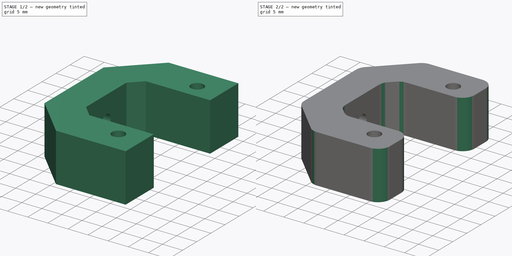
[diagram: build sequence overview — one tinted view per stage of 2, left to right]
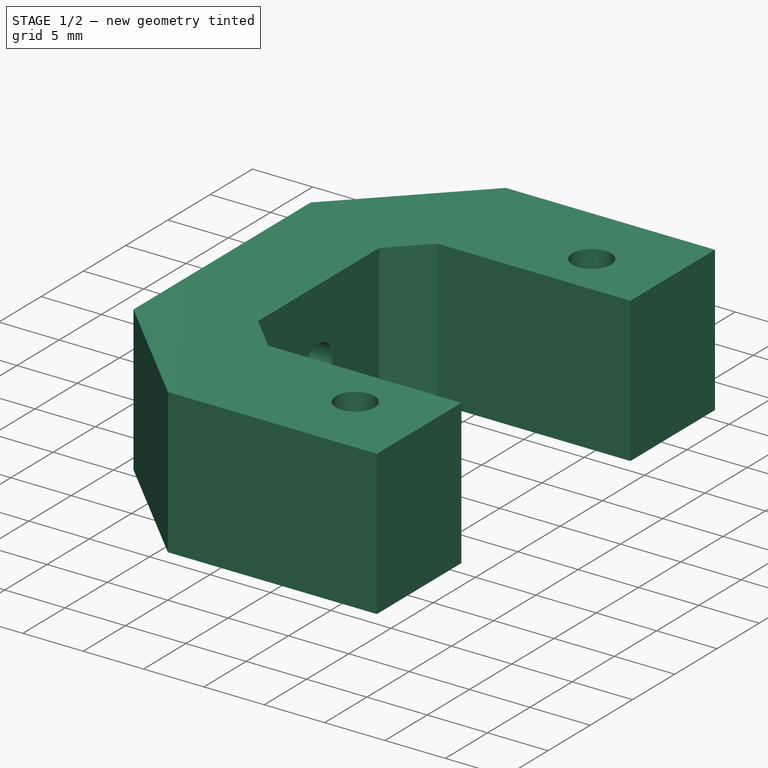
[diagram: stage 1 of 2 — iso view after this stage's code; geometry added in this stage tinted green]
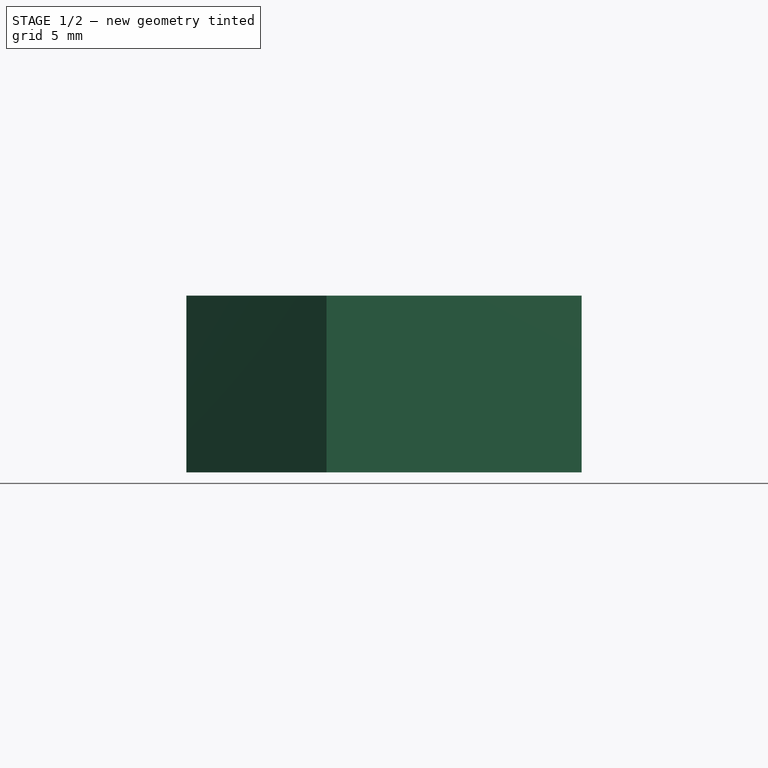
[diagram: stage 1 of 2 — front view after this stage's code; geometry added in this stage tinted green]
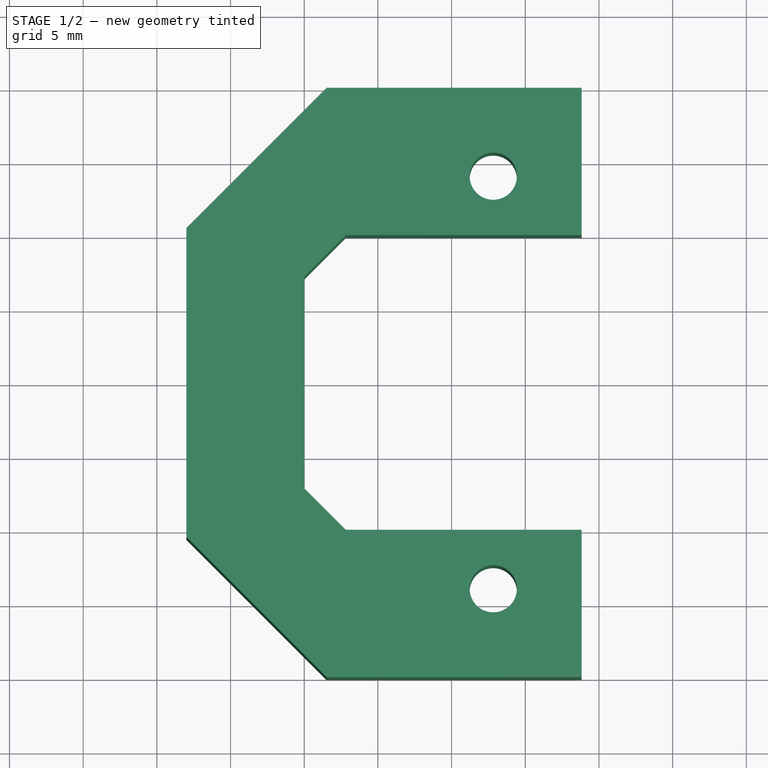
[diagram: stage 1 of 2 — top view after this stage's code; geometry added in this stage tinted green]
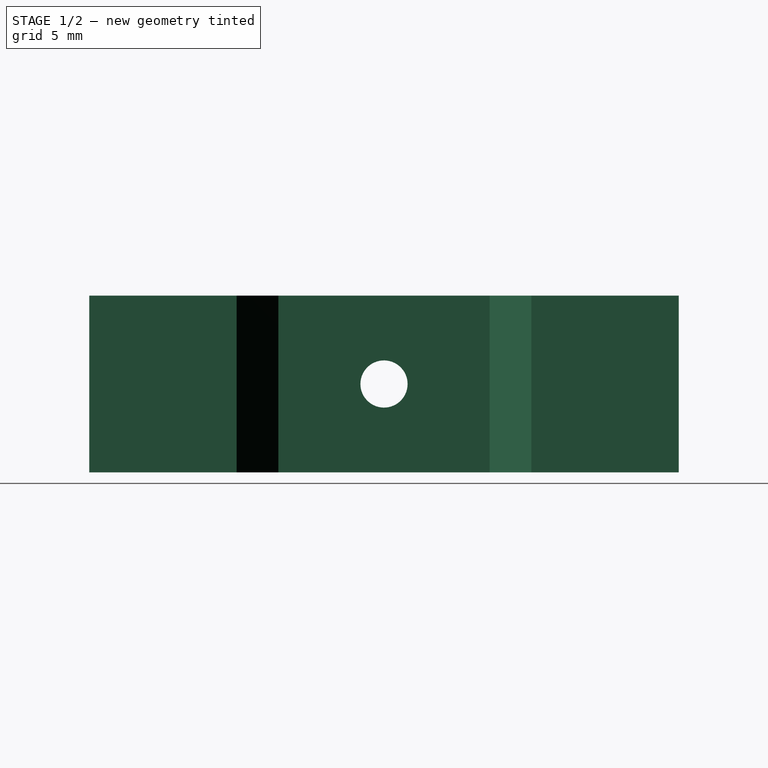
[diagram: stage 1 of 2 — right view after this stage's code; geometry added in this stage tinted green]
FCSTD DOCUMENT  (FreeCAD 0.18R14090 (Git))
Label: XBeltTensionerFrameStandNew
License: All rights reserved
LicenseURL: http://en.wikipedia.org/wiki/All_rights_reserved
objects: Sketcher::SketchObject×2, PartDesign::Pad×1, PartDesign::Pocket×1, PartDesign::Fillet×1, PartDesign::Body×1, App::Part×1
note: 8 computed .brp shape members not serialized (recipe doc carries the construction recipe); baked Part::Feature solids carry a one-line shape summary decoded from their .brp

FEATURE [Sketcher::SketchObject] Sketch  label="FS_BaseSketch"
  MapMode = 5
  Support = -> [XY_Plane001]
  sketch-geometry (20):
    g0: LineSegment StartX=1.51472 StartY=20 StartZ=0 EndX=18.8284 EndY=20 EndZ=0
    g1: LineSegment StartX=18.8284 StartY=20 StartZ=0 EndX=18.8284 EndY=10 EndZ=0
    g2: LineSegment StartX=18.8284 StartY=10 StartZ=0 EndX=6.82843 EndY=10 EndZ=0
    g3: LineSegment StartX=1.51472 StartY=20 StartZ=0 EndX=-8 EndY=10.4853 EndZ=0
    g4: LineSegment StartX=0 StartY=7.17157 StartZ=0 EndX=0 EndY=-7.17157 EndZ=0
    g5: LineSegment StartX=-8 StartY=10.4853 StartZ=0 EndX=-8 EndY=-10.4853 EndZ=0
    g6: LineSegment StartX=1.51472 StartY=-20 StartZ=0 EndX=18.8284 EndY=-20 EndZ=0
    g7: LineSegment StartX=18.8284 StartY=-20 StartZ=0 EndX=18.8284 EndY=-10 EndZ=0
    g8: LineSegment StartX=18.8284 StartY=-10 StartZ=0 EndX=6.82843 EndY=-10 EndZ=0
    g9: LineSegment StartX=1.51472 StartY=-20 StartZ=0 EndX=-8 EndY=-10.4853 EndZ=0
    g10: Circle CenterX=12.8284 CenterY=14 CenterZ=0 NormalX=0 NormalY=0 NormalZ=1 AngleXU=0 Radius=1.6
    g11: Circle CenterX=12.8284 CenterY=-14 CenterZ=0 NormalX=0 NormalY=0 NormalZ=1 AngleXU=0 Radius=1.6
    g12: LineSegment [constr] StartX=12.8284 StartY=14 StartZ=0 EndX=18.8284 EndY=14 EndZ=0
    g13: LineSegment StartX=0 StartY=7.17157 StartZ=0 EndX=2.82843 EndY=10 EndZ=0
    g14: LineSegment StartX=6.82843 StartY=-10 StartZ=0 EndX=2.82843 EndY=-10 EndZ=0
    g15: LineSegment StartX=2.82843 StartY=-10 StartZ=0 EndX=0 EndY=-7.17157 EndZ=0
    g16: LineSegment [constr] StartX=0 StartY=7.17157 StartZ=0 EndX=-5.65685 EndY=12.8284 EndZ=0
    g17: LineSegment [constr] StartX=0 StartY=7.17157 StartZ=0 EndX=-8 EndY=7.17157 EndZ=0
    g18: LineSegment [constr] StartX=12.8284 StartY=-14 StartZ=0 EndX=12.8284 EndY=-10 EndZ=0
    g19: LineSegment StartX=2.82843 StartY=10 StartZ=0 EndX=6.82843 EndY=10 EndZ=0
  constraints (56):
    c: Horizontal(g0)
    c: Coincident(g1,g0)
    c: Vertical(g1)
    c: Coincident(g2,g1)
    c: Horizontal(g2)
    c: Coincident(g3,g0)
    c: Coincident(g5,g3)
    c: Coincident(g7,g6)
    c: Coincident(g8,g7)
    c: Coincident(g9,g6)
    c: Coincident(g5,g9)
    c: Symmetric(g1,g7,g-1)
    c: Vertical(g7)
    c: Horizontal(g8)
    c: Horizontal(g6)
    c: Symmetric(g4,g4,g-1)
    c: Symmetric(g3,g5,g-1)
    c: Distance(g0,g6) = 40
    c: PointOnObject(g4,g-2)
    c: Coincident(g12,g10)
    c: PointOnObject(g12,g1)
    c: Symmetric(g10,g11,g-1)
    c: Horizontal(g12)
    c: Coincident(g13,g4)
    c: Coincident(g14,g8)
    c: Coincident(g15,g14)
    c: Coincident(g15,g4)
    c: Parallel(g13,g3)
    c: Coincident(g16,g4)
    c: PointOnObject(g16,g3)
    c: Perpendicular(g3,g16)
    c: Coincident(g17,g4)
    c: PointOnObject(g17,g5)
    c: Perpendicular(g5,g17)
    c: Equal(g17,g16)
    c: Distance(g11,g10) = 28
    c: Coincident(g18,g11)
    c: PointOnObject(g18,g8)
    c: Vertical(g18)
    c: Distance(g18) = 4
    c: Coincident(g19,g13)
    c: Coincident(g19,g2)
    c: Equal(g19,g14)
    c: Horizontal(g19)
    c: Horizontal(g14)
    c: Equal(g7,g1)
    c: Distance(g19) = 4
    c: Equal(g8,g2)
    c: Equal(g0,g6)
    c: Distance(g12) = 6
    c: Radius(g11) = 1.6
    c: Distance(g2) = 12
    c: Distance(g17) = 8
    c: Equal(g13,g19)
    c: Equal(g11,g10)
    c: Angle(g3,g0) = 2.35619
FEATURE [PartDesign::Pad] Pad  label="FS_BasePad"
  Length = 12
  Length2 = 100
  Midplane = true
  Profile = -> Sketch
  Type = 0
FEATURE [Sketcher::SketchObject] Sketch001  label="FS_ScrewSketch"
  MapMode = 5
  Placement = pos=(0,0,0) rot=(0.57735,0.57735,0.57735;2.0944rad)
  Support = -> [YZ_Plane001]
  sketch-geometry (1):
    g0: Circle CenterX=0 CenterY=0 CenterZ=0 NormalX=0 NormalY=0 NormalZ=1 AngleXU=0 Radius=1.6
  constraints (2):
    c: Coincident(g0,g-1)
    c: Radius(g0) = 1.6
FEATURE [PartDesign::Pocket] Pocket  label="FS_ScrewPocket"
  BaseFeature = -> Pad
  Length = 5
  Length2 = 100
  Profile = -> Sketch001
  Type = 1
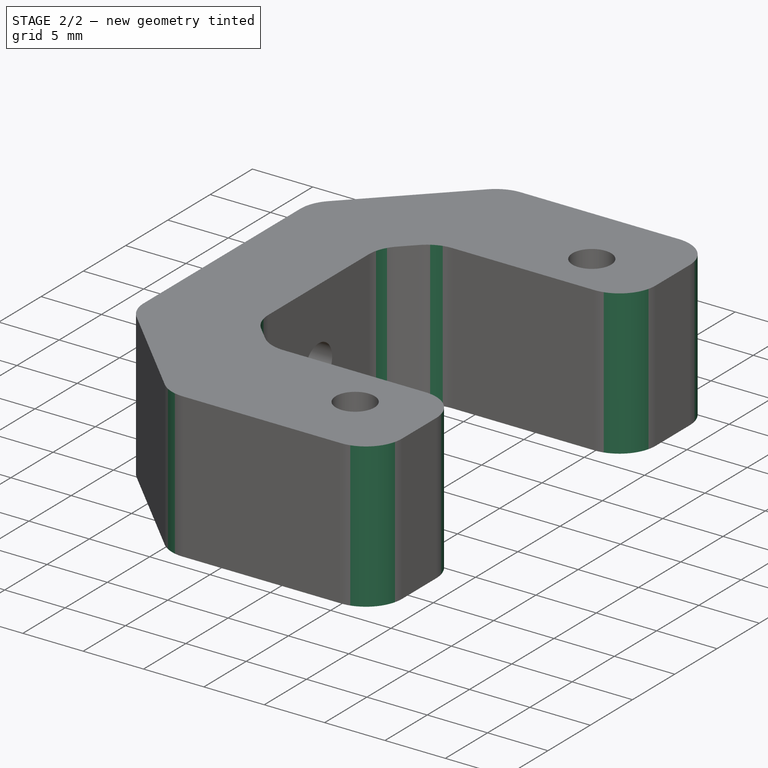
[diagram: stage 2 of 2 — iso view after this stage's code; geometry added in this stage tinted green]
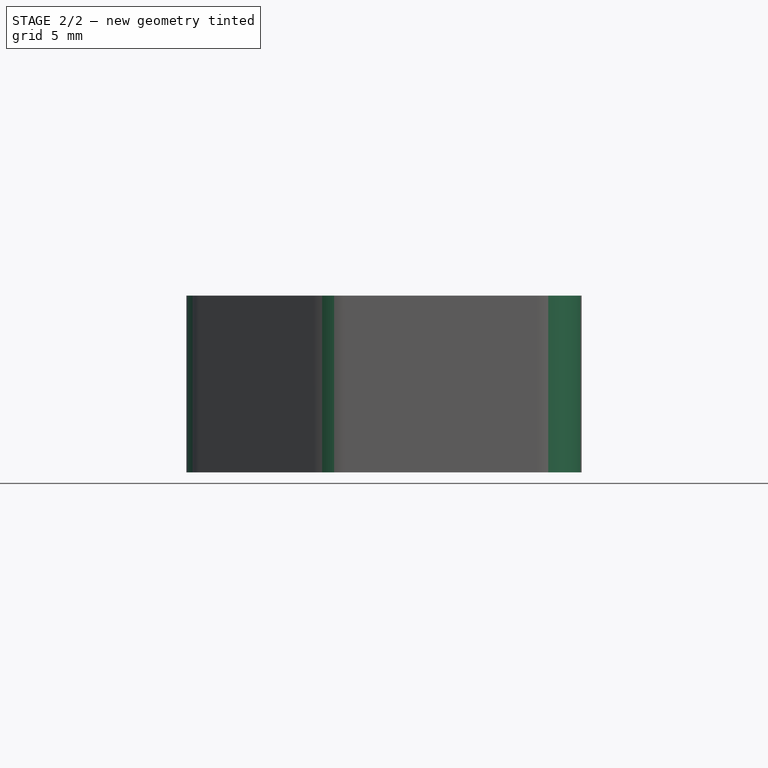
[diagram: stage 2 of 2 — front view after this stage's code; geometry added in this stage tinted green]
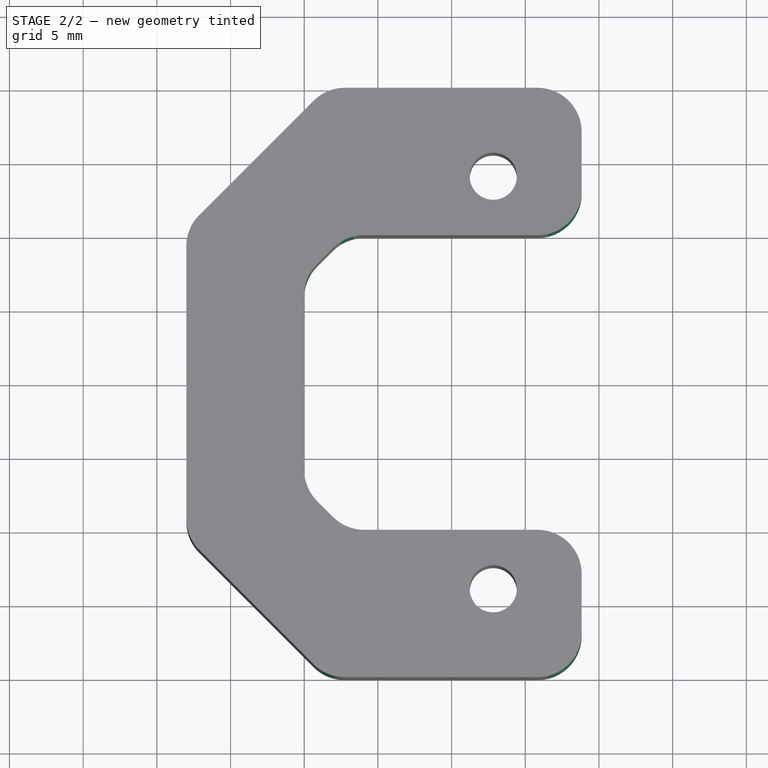
[diagram: stage 2 of 2 — top view after this stage's code; geometry added in this stage tinted green]
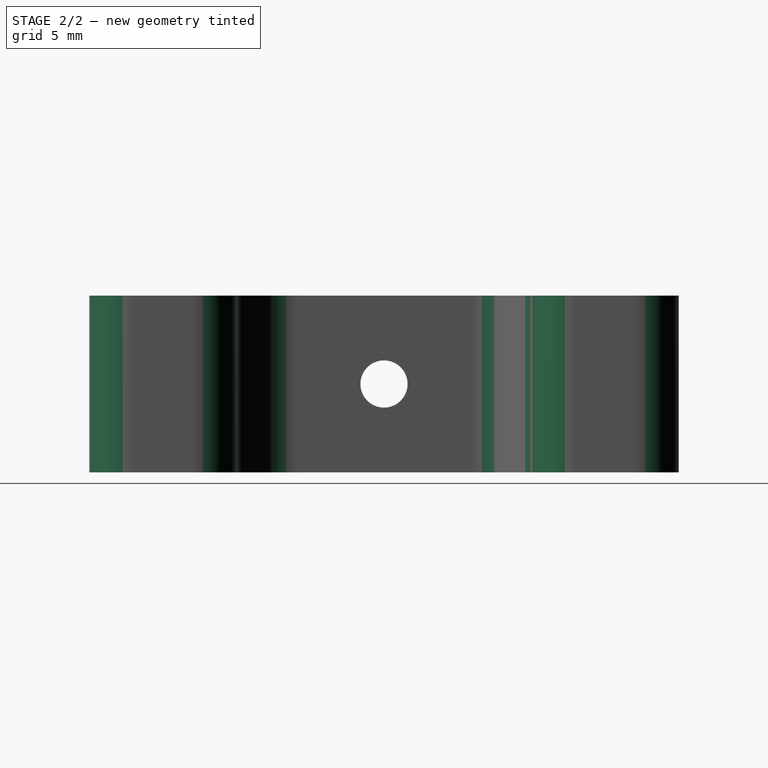
[diagram: stage 2 of 2 — right view after this stage's code; geometry added in this stage tinted green]
FEATURE [PartDesign::Fillet] Fillet  label="CornersFillet"
  Base = -> Pocket [Edge5,Edge38,Edge43,Edge42,Edge1,Edge2,Edge8,Edge39,Edge45,Edge46,Edge47,Edge48]
  BaseFeature = -> Pocket
  Radius = 3
FEATURE [PartDesign::Body] Body  label="FrameStandBody"
  Group = -> [Sketch,Pad,Sketch001,Pocket,Fillet]
  Origin = -> Origin001
  Tip = -> Fillet
FEATURE [App::Part] Part  label="FrameStandPart"
  Group = -> [Body]
  License = CC BY 3.0
  LicenseURL = http://creativecommons.org/licenses/by/3.0/
  Origin = -> Origin
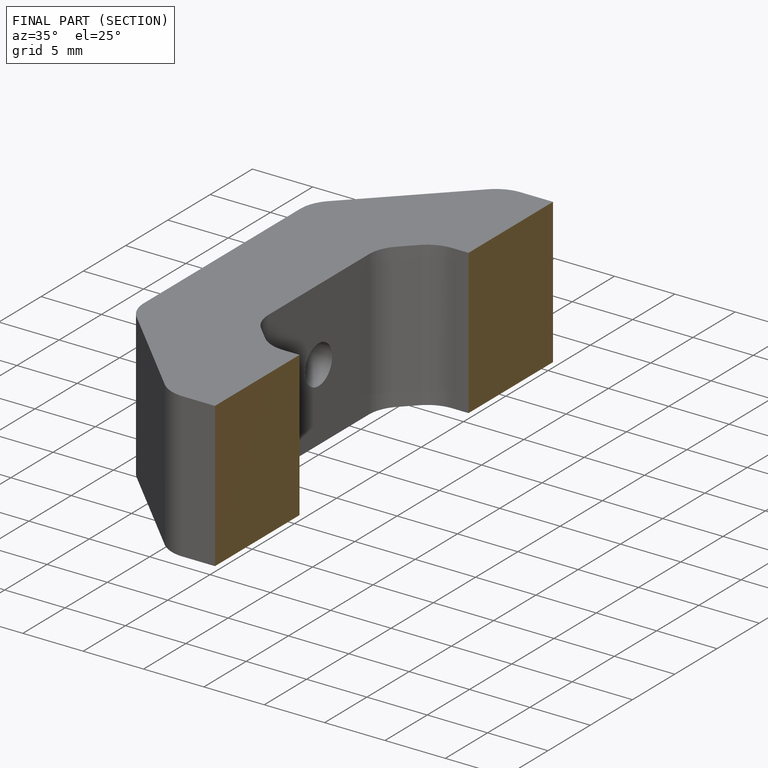
[diagram: finished part — half-section view (interior)]
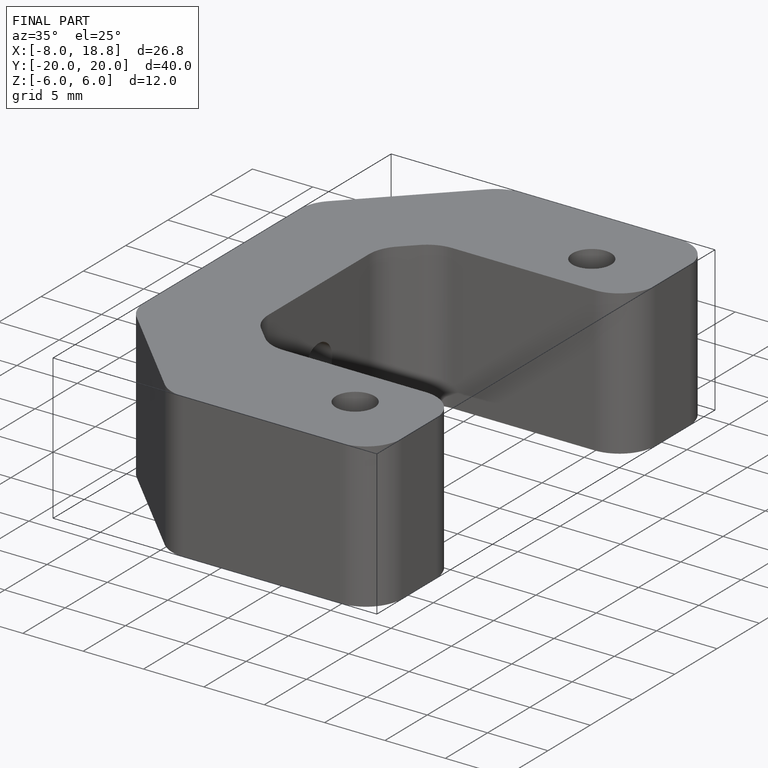
[diagram: finished part — iso view with bounding-box wireframe]
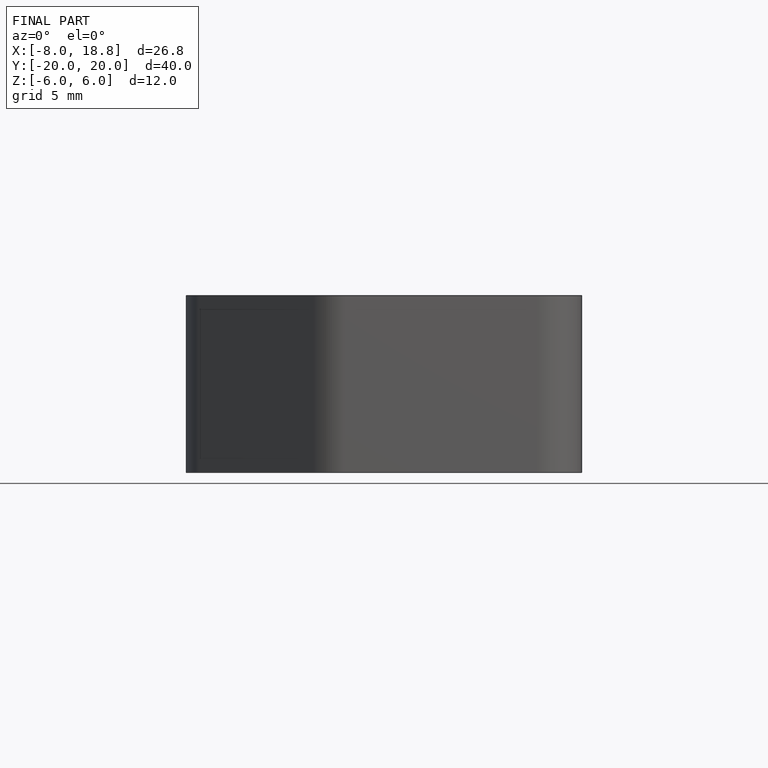
[diagram: finished part — front view with bounding-box wireframe]
